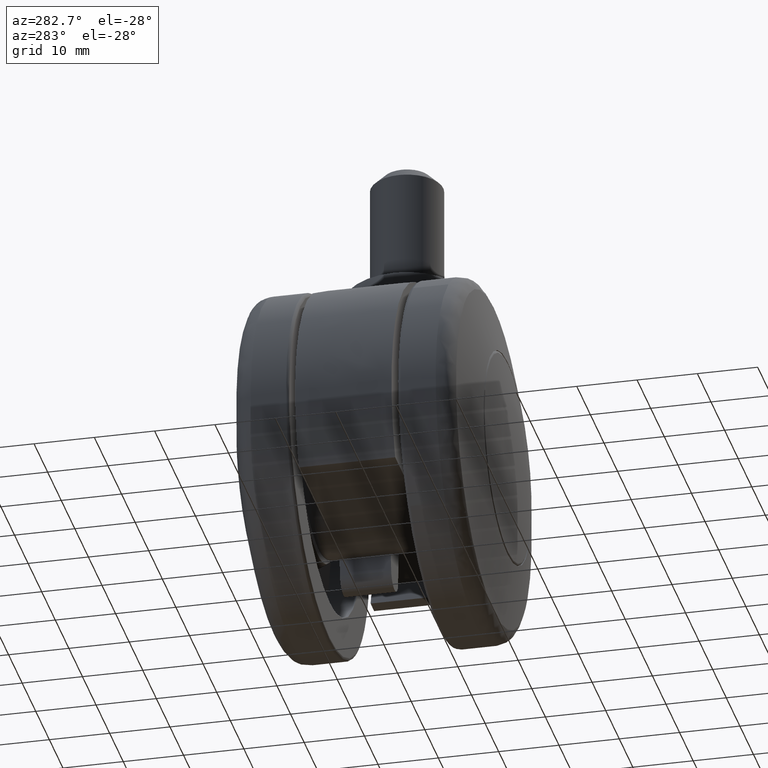
[diagram: clean part render]
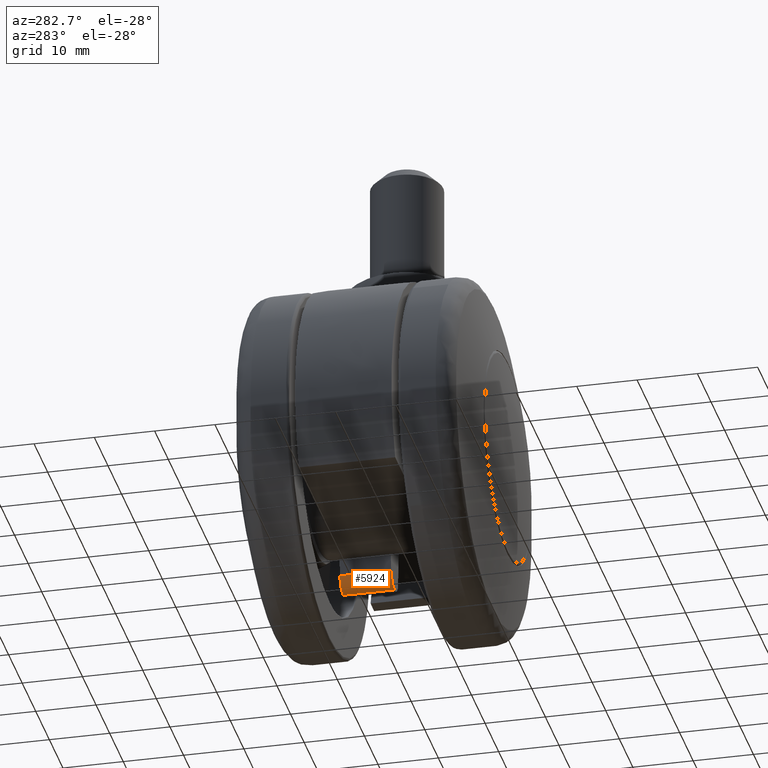
[diagram: same view with one face highlighted and labeled with its STEP entity id]
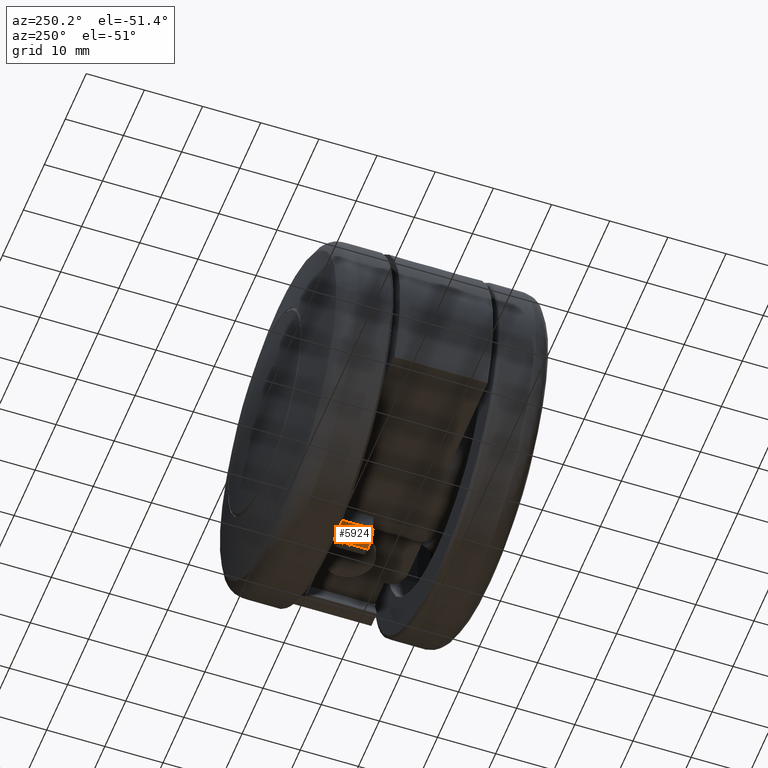
[diagram: same view with one face highlighted and labeled with its STEP entity id]
A machine part, auxiliary view. The second image highlights one B-rep face of the part: STEP entity #5924.
A second angle (auxiliary view) of the same face is appended — the face is thin or edge-on in the first view.
In plain terms, the highlighted face is a freeform B-spline surface patch.
Its self-contained STEP definition (entity closure, byte-faithful):
#5694=CARTESIAN_POINT('',(7.742275020265480,0.0,-17.699999999999999));
#5695=VERTEX_POINT('',#5694);
#5738=CARTESIAN_POINT('',(5.251788275036120,0.0,-15.417889356869351));
#5739=VERTEX_POINT('',#5738);
#5745=CARTESIAN_POINT('',(5.251788275036134,0.0,-15.417889356869351));
#5746=CARTESIAN_POINT('',(5.451447085222109,0.0,-17.699999999999996));
#5747=CARTESIAN_POINT('',(7.742275020265480,0.0,-17.699999999999999));
#5755=(BOUNDED_CURVE()B_SPLINE_CURVE(2,(#5745,#5746,#5747),.UNSPECIFIED.,.F.,.U.)CURVE()GEOMETRIC_REPRESENTATION_ITEM()QUASI_UNIFORM_CURVE()RATIONAL_B_SPLINE_CURVE((1.0,0.737277336810152,1.0))REPRESENTATION_ITEM(''));
#5756=EDGE_CURVE('',#5739,#5695,#5755,.T.);
#5768=CARTESIAN_POINT('',(7.742275020265480,8.500000000000000,-17.699999999999999));
#5769=VERTEX_POINT('',#5768);
#5775=CARTESIAN_POINT('',(5.251788275036120,8.500000000000000,-15.417889356869351));
#5776=VERTEX_POINT('',#5775);
#5777=CARTESIAN_POINT('',(5.251788275036134,8.500000000000000,-15.417889356869351));
#5778=CARTESIAN_POINT('',(5.451447085222109,8.500000000000000,-17.699999999999996));
#5779=CARTESIAN_POINT('',(7.742275020265480,8.500000000000000,-17.699999999999999));
#5787=(BOUNDED_CURVE()B_SPLINE_CURVE(2,(#5777,#5778,#5779),.UNSPECIFIED.,.F.,.U.)CURVE()GEOMETRIC_REPRESENTATION_ITEM()QUASI_UNIFORM_CURVE()RATIONAL_B_SPLINE_CURVE((1.0,0.737277336810152,1.0))REPRESENTATION_ITEM(''));
#5788=EDGE_CURVE('',#5776,#5769,#5787,.T.);
#5892=CARTESIAN_POINT('',(5.251788275036120,8.500000000000000,-15.417889356869351));
#5893=CARTESIAN_POINT('',(5.251788275036120,0.0,-15.417889356869351));
#5894=QUASI_UNIFORM_CURVE('',1,(#5892,#5893),.UNSPECIFIED.,.F.,.U.);
#5895=EDGE_CURVE('',#5776,#5739,#5894,.T.);
#5900=CARTESIAN_POINT('',(7.807717391035166,8.712500000000002,-17.699143312438888));
#5901=CARTESIAN_POINT('',(7.807717391035166,-0.217812499999999,-17.699143312438888));
#5902=CARTESIAN_POINT('',(5.351816097767586,8.712500000000002,-17.763453351086067));
#5903=CARTESIAN_POINT('',(5.351816097767586,-0.217812499999999,-17.763453351086067));
#5904=CARTESIAN_POINT('',(5.244654466310836,8.712500000000002,-15.309048468413341));
#5905=CARTESIAN_POINT('',(5.244654466310836,-0.217812499999999,-15.309048468413341));
#5913=(BOUNDED_SURFACE()B_SPLINE_SURFACE(1,2,((#5900,#5902,#5904),(#5901,#5903,#5905)),.UNSPECIFIED.,.F.,.F.,.U.)B_SPLINE_SURFACE_WITH_KNOTS((2,2),(3,3),(0.0,8.930312500000001),(0.0,4.091108014277096),.UNSPECIFIED.)GEOMETRIC_REPRESENTATION_ITEM()RATIONAL_B_SPLINE_SURFACE(((1.0,0.713250449154182,1.0),(1.0,0.713250449154182,1.0)))REPRESENTATION_ITEM('')SURFACE());
#5914=ORIENTED_EDGE('',*,*,#5756,.F.);
#5915=ORIENTED_EDGE('',*,*,#5895,.F.);
#5916=ORIENTED_EDGE('',*,*,#5788,.T.);
#5917=CARTESIAN_POINT('',(7.742275020265480,8.500000000000000,-17.699999999999999));
#5918=CARTESIAN_POINT('',(7.742275020265480,0.0,-17.699999999999999));
#5919=QUASI_UNIFORM_CURVE('',1,(#5917,#5918),.UNSPECIFIED.,.F.,.U.);
#5920=EDGE_CURVE('',#5769,#5695,#5919,.T.);
#5921=ORIENTED_EDGE('',*,*,#5920,.T.);
#5922=EDGE_LOOP('',(#5914,#5915,#5916,#5921));
#5923=FACE_OUTER_BOUND('',#5922,.T.);
#5924=ADVANCED_FACE('',(#5923),#5913,.T.);